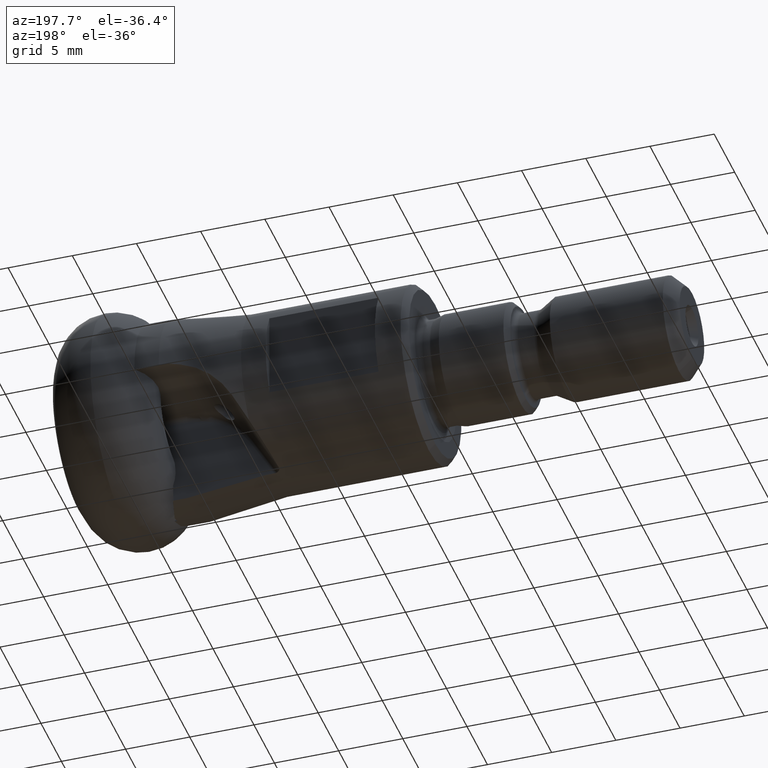
[diagram: clean part render]
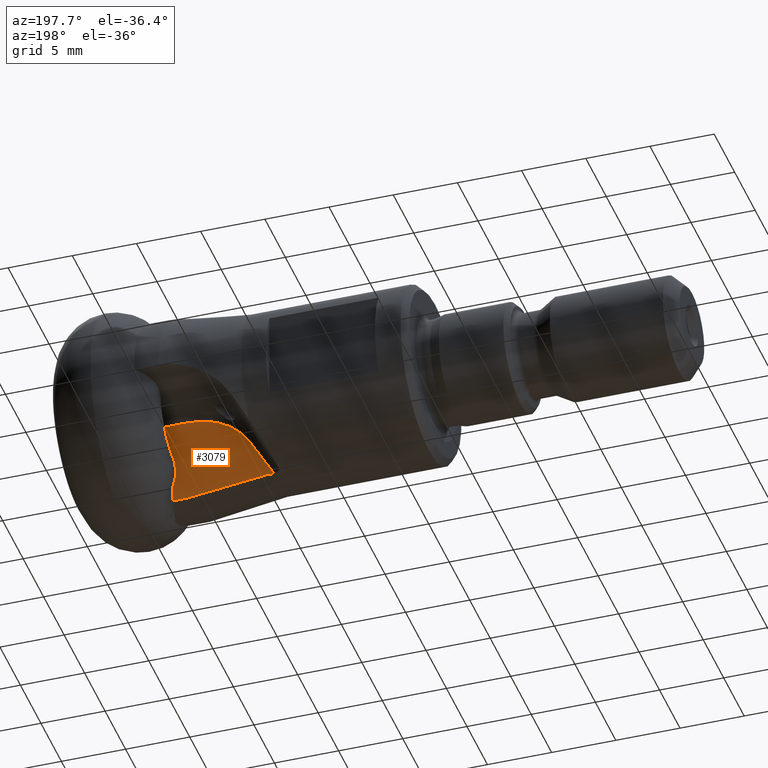
[diagram: same view with one face highlighted and labeled with its STEP entity id]
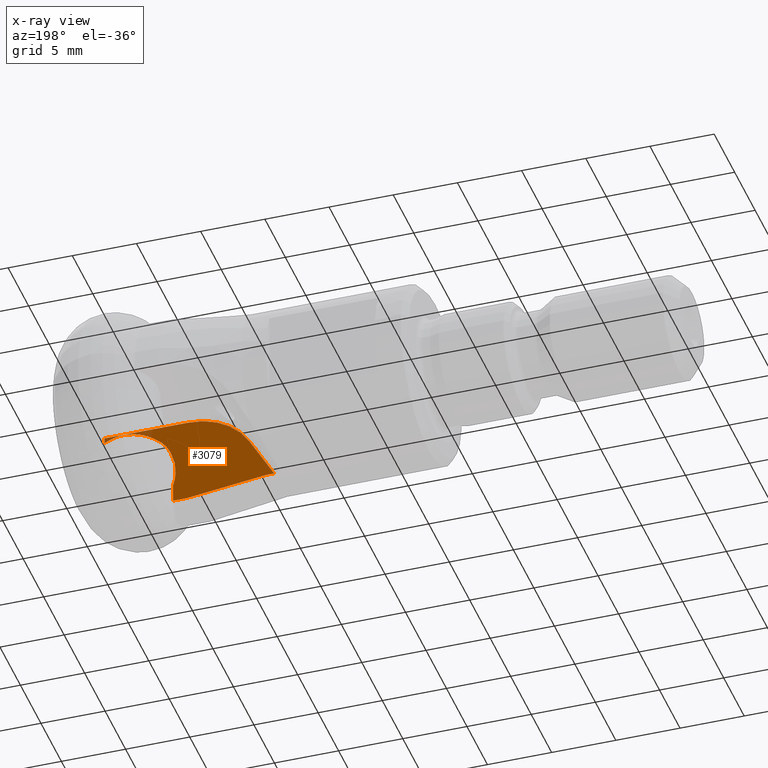
[diagram: x-ray of the same camera — body ghosted, the highlighted face saturated]
A machine part, auxiliary view. The second image highlights one B-rep face of the part: STEP entity #3079.
The next image is the same camera in x-ray: the body ghosted, the highlighted face saturated — about 2% of this face is hidden behind the body in this view.
In plain terms, the highlighted planar face has unit normal (0, -1, 0).
Its self-contained STEP definition (entity closure, byte-faithful):
#10 = CIRCLE ( 'NONE', #2539, 5.500000000000000000 ) ;
#33 = CARTESIAN_POINT ( 'NONE',  ( -6.721516437807188100, 0.6999999999999996200, -3.209523147872019400 ) ) ;
#126 = EDGE_CURVE ( 'NONE', #2439, #1648, #10, .T. ) ;
#172 = CARTESIAN_POINT ( 'NONE',  ( -5.529872157287836200, 0.6999999999999996200, -1.676281618623048700 ) ) ;
#191 = CARTESIAN_POINT ( 'NONE',  ( -3.551903700872269400, 0.6999999999999996200, -0.7406293054479329300 ) ) ;
#208 = CARTESIAN_POINT ( 'NONE',  ( -4.601138381587917400, 0.6999999999999996200, -1.076159639975865500 ) ) ;
#212 = CARTESIAN_POINT ( 'NONE',  ( -2.037310698496929800, 0.6999999999999997300, -0.8964394462127964800 ) ) ;
#249 = CARTESIAN_POINT ( 'NONE',  ( -5.529872157287836200, 0.6999999999999996200, -1.676281618623048700 ) ) ;
#272 = DIRECTION ( 'NONE',  ( 1.816422675012359800E-015, 0.0000000000000000000, -1.000000000000000000 ) ) ;
#275 = AXIS2_PLACEMENT_3D ( 'NONE', #407, #1680, #2648 ) ;
#292 = VECTOR ( 'NONE', #1259, 1000.000000000000000 ) ;
#407 = CARTESIAN_POINT ( 'NONE',  ( -8.060000000000000500, 0.6999999999999996200, -6.190000000000001300 ) ) ;
#438 = ORIENTED_EDGE ( 'NONE', *, *, #3173, .F. ) ;
#442 = B_SPLINE_CURVE_WITH_KNOTS ( 'NONE', 3,
 ( #992, #2527, #212, #2750, #2787, #1226, #738, #1520 ),
 .UNSPECIFIED., .F., .F.,
 ( 4, 2, 2, 4 ),
 ( 0.01518612685971588100, 0.01599770197568782200, 0.01640348953367379300, 0.01680927709165976400 ),
 .UNSPECIFIED. ) ;
#464 = EDGE_CURVE ( 'NONE', #1953, #2358, #442, .T. ) ;
#465 = CARTESIAN_POINT ( 'NONE',  ( -8.060000000000000500, 0.6999999999999996200, -6.190000000000001300 ) ) ;
#471 = CARTESIAN_POINT ( 'NONE',  ( -4.800636840523334400, 0.6999999999999995100, -1.178263407153546500 ) ) ;
#481 = DIRECTION ( 'NONE',  ( 0.0000000000000000000, 0.0000000000000000000, -1.000000000000000000 ) ) ;
#525 = LINE ( 'NONE', #2830, #2477 ) ;
#549 = LINE ( 'NONE', #1700, #2329 ) ;
#565 = CARTESIAN_POINT ( 'NONE',  ( -3.798000000000000900, 0.6999999999999996200, -4.252000000000000700 ) ) ;
#597 = VERTEX_POINT ( 'NONE', #2878 ) ;
#701 = DIRECTION ( 'NONE',  ( -1.000000000000000000, 0.0000000000000000000, 0.0000000000000000000 ) ) ;
#738 = CARTESIAN_POINT ( 'NONE',  ( -2.972256494120652200, 0.6999999999999995100, -0.7139736755016333800 ) ) ;
#743 = CARTESIAN_POINT ( 'NONE',  ( -6.901821249581237400, 0.6999999999998574000, -6.227646515731273700 ) ) ;
#746 = CARTESIAN_POINT ( 'NONE',  ( -7.115949373875773500, 0.6999999999999996200, -4.959114311600902900 ) ) ;
#773 = ORIENTED_EDGE ( 'NONE', *, *, #464, .T. ) ;
#857 = ORIENTED_EDGE ( 'NONE', *, *, #126, .T. ) ;
#871 = EDGE_CURVE ( 'NONE', #1537, #1953, #549, .T. ) ;
#906 = PLANE ( 'NONE',  #275 ) ;
#933 = CARTESIAN_POINT ( 'NONE',  ( -3.984072939414881700, 0.6999999999999999600, -0.8373137489839903600 ) ) ;
#959 = CARTESIAN_POINT ( 'NONE',  ( -3.107779846157273400, 0.6999999999999996200, -0.7139736755016330400 ) ) ;
#983 = EDGE_CURVE ( 'NONE', #1247, #1716, #1862, .T. ) ;
#988 = CARTESIAN_POINT ( 'NONE',  ( -7.041450882683821400, 0.6999999999999996200, -5.726386837480769800 ) ) ;
#992 = CARTESIAN_POINT ( 'NONE',  ( -1.541999999999998700, 0.6999999999999996200, -1.118013355076715100 ) ) ;
#1053 = DIRECTION ( 'NONE',  ( -0.0000000000000000000, 1.000000000000000000, -0.0000000000000000000 ) ) ;
#1059 = FACE_OUTER_BOUND ( 'NONE', #2956, .T. ) ;
#1134 = ORIENTED_EDGE ( 'NONE', *, *, #1405, .T. ) ;
#1158 = ORIENTED_EDGE ( 'NONE', *, *, #2185, .T. ) ;
#1169 = LINE ( 'NONE', #2499, #292 ) ;
#1187 = CARTESIAN_POINT ( 'NONE',  ( -4.193346086016517500, 0.6999999999999997300, -0.9061458570938059100 ) ) ;
#1192 = CARTESIAN_POINT ( 'NONE',  ( -13.92259556711809400, 0.6999999999999996200, -6.894630355409867100 ) ) ;
#1210 = EDGE_CURVE ( 'NONE', #1648, #1537, #1169, .T. ) ;
#1214 = ORIENTED_EDGE ( 'NONE', *, *, #1264, .T. ) ;
#1215 = CARTESIAN_POINT ( 'NONE',  ( -8.000000000000000000, 0.6999999999999996200, -7.617906536575517900 ) ) ;
#1226 = CARTESIAN_POINT ( 'NONE',  ( -2.836995699869473400, 0.6999999999999996200, -0.7236786312281459100 ) ) ;
#1230 = CARTESIAN_POINT ( 'NONE',  ( -6.830561755909838200, 0.6999999999999994000, -3.444710479370423500 ) ) ;
#1247 = VERTEX_POINT ( 'NONE', #1271 ) ;
#1257 = CARTESIAN_POINT ( 'NONE',  ( -14.17000000000000000, 0.6999999999999996200, -6.864400920692205000 ) ) ;
#1259 = DIRECTION ( 'NONE',  ( 1.000000000000000000, -0.0000000000000000000, 1.372727033417890500E-016 ) ) ;
#1264 = EDGE_CURVE ( 'NONE', #1353, #2439, #2243, .T. ) ;
#1271 = CARTESIAN_POINT ( 'NONE',  ( -6.721516437807188100, 0.6999999999999996200, -3.209523147872019400 ) ) ;
#1290 = VECTOR ( 'NONE', #1999, 1000.000000000000100 ) ;
#1304 = CARTESIAN_POINT ( 'NONE',  ( -1.541999999999998700, 0.6999999999999996200, -1.118013355076715100 ) ) ;
#1332 = VERTEX_POINT ( 'NONE', #249 ) ;
#1352 = CARTESIAN_POINT ( 'NONE',  ( -3.107779846157273400, 0.6999999999999996200, -0.7139736755016330400 ) ) ;
#1353 = VERTEX_POINT ( 'NONE', #2609 ) ;
#1372 = AXIS2_PLACEMENT_3D ( 'NONE', #565, #1053, #272 ) ;
#1405 = EDGE_CURVE ( 'NONE', #2038, #597, #1961, .T. ) ;
#1423 = CARTESIAN_POINT ( 'NONE',  ( -1.541999999999998700, 0.6999999999999996200, -0.6900000000000000600 ) ) ;
#1430 = ORIENTED_EDGE ( 'NONE', *, *, #2184, .T. ) ;
#1439 = CARTESIAN_POINT ( 'NONE',  ( -12.84201106566022500, 0.6999999999999996200, -3.472948258147603000 ) ) ;
#1464 = CARTESIAN_POINT ( 'NONE',  ( -11.61853558916560700, 0.6999999999999996200, -7.176119383655273700 ) ) ;
#1507 = CARTESIAN_POINT ( 'NONE',  ( -6.983205074393693800, 0.6999999999999995100, -5.982404349023345200 ) ) ;
#1520 = CARTESIAN_POINT ( 'NONE',  ( -3.107779846157273400, 0.6999999999999996200, -0.7139736755016330400 ) ) ;
#1537 = VERTEX_POINT ( 'NONE', #1423 ) ;
#1563 = CARTESIAN_POINT ( 'NONE',  ( 0.0000000000000000000, 0.6999999999999996200, -7.617906536575517900 ) ) ;
#1572 = ORIENTED_EDGE ( 'NONE', *, *, #2224, .T. ) ;
#1648 = VERTEX_POINT ( 'NONE', #2455 ) ;
#1660 = ORIENTED_EDGE ( 'NONE', *, *, #983, .T. ) ;
#1680 = DIRECTION ( 'NONE',  ( 0.0000000000000000000, -1.000000000000000000, 0.0000000000000000000 ) ) ;
#1689 = CARTESIAN_POINT ( 'NONE',  ( -3.328188487169903900, 0.6999999999999995100, -0.7139736755016332600 ) ) ;
#1700 = CARTESIAN_POINT ( 'NONE',  ( -1.541999999999998700, 0.6999999999999996200, 0.0000000000000000000 ) ) ;
#1716 = VERTEX_POINT ( 'NONE', #743 ) ;
#1722 = ORIENTED_EDGE ( 'NONE', *, *, #1948, .F. ) ;
#1787 = CARTESIAN_POINT ( 'NONE',  ( -12.84201106566022500, 0.6999999999999996200, -3.472948258147603000 ) ) ;
#1791 = CARTESIAN_POINT ( 'NONE',  ( -6.916672687015063700, 0.6999999999999997300, -3.686728622319370700 ) ) ;
#1862 = B_SPLINE_CURVE_WITH_KNOTS ( 'NONE', 3,
 ( #33, #1230, #1791, #3020, #1994, #746, #2509, #988, #1507, #2008 ),
 .UNSPECIFIED., .F., .F.,
 ( 4, 2, 2, 2, 4 ),
 ( 0.02139846767740229800, 0.02216944462291400200, 0.02294042156842570100, 0.02371139851393740100, 0.02448237545944910100 ),
 .UNSPECIFIED. ) ;
#1935 = CIRCLE ( 'NONE', #1372, 3.103821249581273800 ) ;
#1940 = CARTESIAN_POINT ( 'NONE',  ( -13.42778596879779400, 0.6999999999999996200, -6.955083229238421300 ) ) ;
#1948 = EDGE_CURVE ( 'NONE', #2038, #1716, #525, .T. ) ;
#1952 = CARTESIAN_POINT ( 'NONE',  ( 0.0000000000000000000, 0.6999999999999996200, -6.864400920692203200 ) ) ;
#1953 = VERTEX_POINT ( 'NONE', #1304 ) ;
#1961 = LINE ( 'NONE', #1563, #2160 ) ;
#1965 = LINE ( 'NONE', #1952, #2755 ) ;
#1994 = CARTESIAN_POINT ( 'NONE',  ( -7.084322196337362600, 0.6999999999999994000, -4.442635433295496500 ) ) ;
#1999 = DIRECTION ( 'NONE',  ( 0.4940094076095273300, -0.0000000000000000000, 0.8694565573927681700 ) ) ;
#2008 = CARTESIAN_POINT ( 'NONE',  ( -6.901821249581237400, 0.6999999999998574000, -6.227646515731273700 ) ) ;
#2038 = VERTEX_POINT ( 'NONE', #3147 ) ;
#2050 = DIRECTION ( 'NONE',  ( 1.150150657039540700E-016, -0.0000000000000000000, 1.000000000000000000 ) ) ;
#2160 = VECTOR ( 'NONE', #2900, 1000.000000000000000 ) ;
#2184 = EDGE_CURVE ( 'NONE', #2358, #1332, #2638, .T. ) ;
#2185 = EDGE_CURVE ( 'NONE', #597, #2522, #2781, .T. ) ;
#2219 = CARTESIAN_POINT ( 'NONE',  ( -9.809272585168619300, 0.6999999999999996200, -7.397052217360619700 ) ) ;
#2224 = EDGE_CURVE ( 'NONE', #2522, #1353, #1965, .T. ) ;
#2242 = CARTESIAN_POINT ( 'NONE',  ( -5.179020273761390800, 0.6999999999999996200, -1.407696655734282500 ) ) ;
#2243 = LINE ( 'NONE', #1787, #1290 ) ;
#2329 = VECTOR ( 'NONE', #481, 1000.000000000000000 ) ;
#2358 = VERTEX_POINT ( 'NONE', #1352 ) ;
#2439 = VERTEX_POINT ( 'NONE', #1439 ) ;
#2455 = CARTESIAN_POINT ( 'NONE',  ( -8.060000000000000500, 0.6999999999999996200, -0.6900000000000009500 ) ) ;
#2477 = VECTOR ( 'NONE', #2050, 1000.000000000000000 ) ;
#2499 = CARTESIAN_POINT ( 'NONE',  ( -1.541999999999998300, 0.6999999999999996200, -0.6900000000000000600 ) ) ;
#2505 = ORIENTED_EDGE ( 'NONE', *, *, #1210, .T. ) ;
#2509 = CARTESIAN_POINT ( 'NONE',  ( -7.107306346109390400, 0.6999999999999995100, -5.215860393543079200 ) ) ;
#2516 = DIRECTION ( 'NONE',  ( 0.0000000000000000000, 0.0000000000000000000, -1.000000000000000000 ) ) ;
#2522 = VERTEX_POINT ( 'NONE', #1257 ) ;
#2527 = CARTESIAN_POINT ( 'NONE',  ( -1.785293893983194400, 0.6999999999999996200, -0.9959062755559445800 ) ) ;
#2539 = AXIS2_PLACEMENT_3D ( 'NONE', #465, #3006, #2516 ) ;
#2609 = CARTESIAN_POINT ( 'NONE',  ( -14.76897280574238600, 0.6999999999999996200, -6.864400920692203200 ) ) ;
#2638 = B_SPLINE_CURVE_WITH_KNOTS ( 'NONE', 3,
 ( #959, #1689, #191, #933, #1187, #208, #471, #2242, #2975, #172 ),
 .UNSPECIFIED., .F., .F.,
 ( 4, 2, 2, 2, 4 ),
 ( 0.01680927709165976400, 0.01746923039750297400, 0.01812918370334618000, 0.01878913700918939000, 0.01944909031503259600 ),
 .UNSPECIFIED. ) ;
#2648 = DIRECTION ( 'NONE',  ( 0.0000000000000000000, -0.0000000000000000000, -1.000000000000000000 ) ) ;
#2700 = CARTESIAN_POINT ( 'NONE',  ( -13.67519088685157800, 0.6999999999999996200, -6.924857765540278500 ) ) ;
#2750 = CARTESIAN_POINT ( 'NONE',  ( -2.431747422917530400, 0.6999999999999995100, -0.7898351756509138800 ) ) ;
#2755 = VECTOR ( 'NONE', #701, 1000.000000000000000 ) ;
#2781 = B_SPLINE_CURVE_WITH_KNOTS ( 'NONE', 3,
 ( #1215, #2219, #1464, #1940, #2700, #1192, #3264 ),
 .UNSPECIFIED., .F., .F.,
 ( 4, 3, 4 ),
 ( 0.007006992419616784100, 0.01247509951150722000, 0.01322283271536751600 ),
 .UNSPECIFIED. ) ;
#2787 = CARTESIAN_POINT ( 'NONE',  ( -2.566972739796708100, 0.6999999999999995100, -0.7615194066716503000 ) ) ;
#2830 = CARTESIAN_POINT ( 'NONE',  ( -6.901821249581275600, 0.6999999999999996200, -6.190000000000001300 ) ) ;
#2878 = CARTESIAN_POINT ( 'NONE',  ( -8.000000000000000000, 0.6999999999999996200, -7.617906536575517900 ) ) ;
#2900 = DIRECTION ( 'NONE',  ( -1.000000000000000000, 0.0000000000000000000, 0.0000000000000000000 ) ) ;
#2956 = EDGE_LOOP ( 'NONE', ( #3070, #773, #1430, #438, #1660, #1722, #1134, #1158, #1572, #1214, #857, #2505 ) ) ;
#2975 = CARTESIAN_POINT ( 'NONE',  ( -5.359055264755246700, 0.6999999999999995100, -1.535434759361228100 ) ) ;
#3006 = DIRECTION ( 'NONE',  ( -0.0000000000000000000, 1.000000000000000000, -0.0000000000000000000 ) ) ;
#3020 = CARTESIAN_POINT ( 'NONE',  ( -7.043506987401606500, 0.6999999999999992900, -4.184283206179780600 ) ) ;
#3070 = ORIENTED_EDGE ( 'NONE', *, *, #871, .T. ) ;
#3079 = ADVANCED_FACE ( 'NONE', ( #1059 ), #906, .F. ) ;
#3147 = CARTESIAN_POINT ( 'NONE',  ( -6.901821249581275600, 0.6999999999999996200, -7.617906536575517900 ) ) ;
#3173 = EDGE_CURVE ( 'NONE', #1247, #1332, #1935, .T. ) ;
#3264 = CARTESIAN_POINT ( 'NONE',  ( -14.17000000000000000, 0.6999999999999996200, -6.864400920692205000 ) ) ;